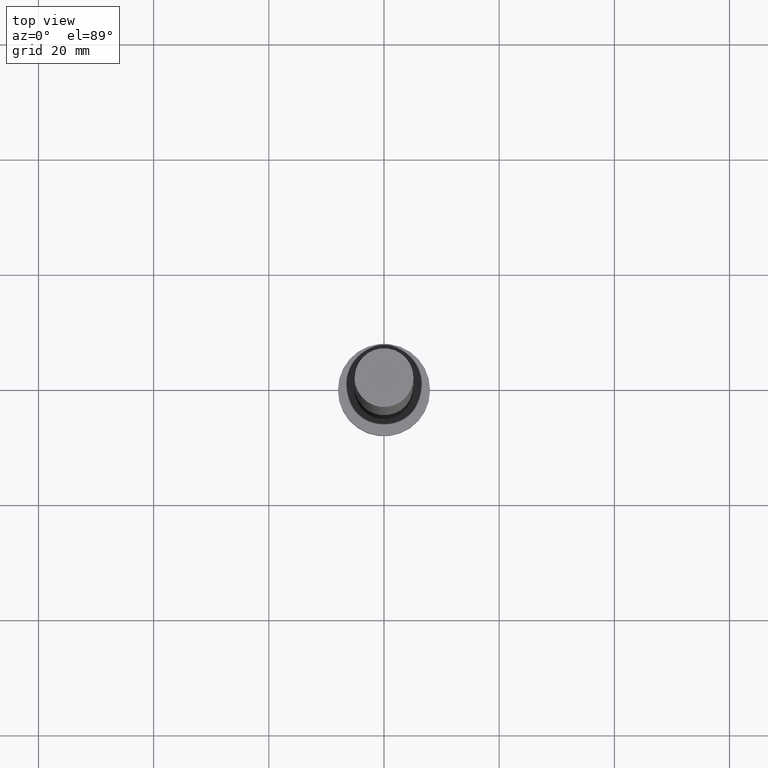
[diagram: clean part render]
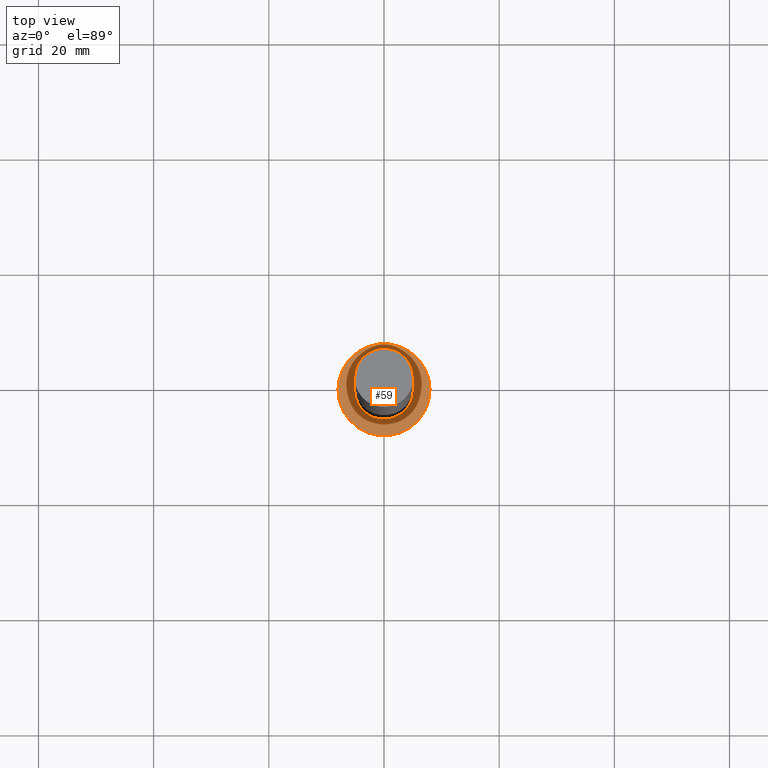
[diagram: same view with one face highlighted and labeled with its STEP entity id]
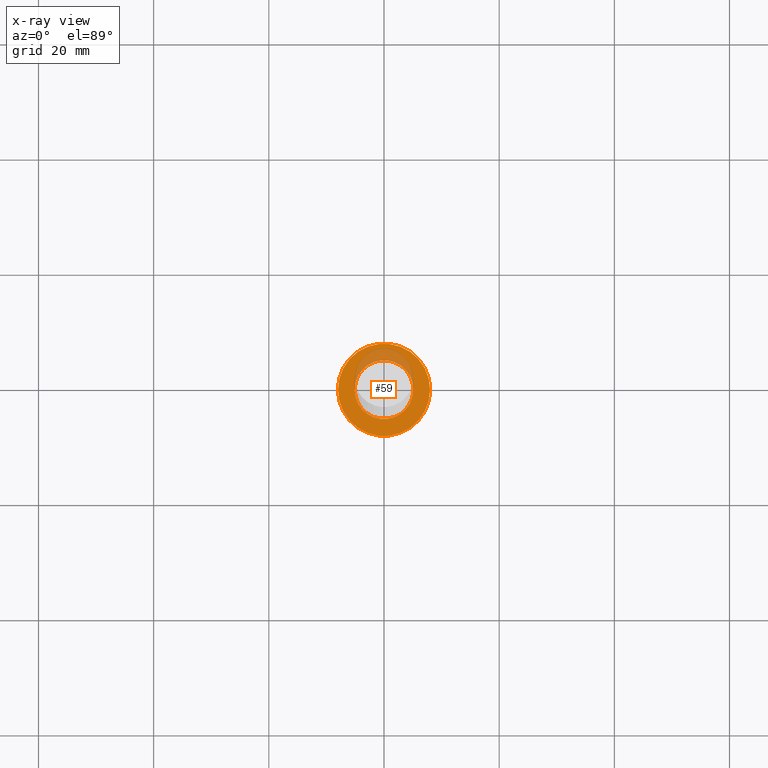
[diagram: x-ray of the same camera — body ghosted, the highlighted face saturated]
A machine part, top view. The second image highlights one B-rep face of the part: STEP entity #59.
The next image is the same camera in x-ray: the body ghosted, the highlighted face saturated — about 18% of this face is hidden behind the body in this view.
In plain terms, the highlighted planar face has unit normal (0, 0, 1).
Its self-contained STEP definition (entity closure, byte-faithful):
#4 = DIRECTION ( 'NONE',  ( 1.000000000000000000, 0.000000000000000000, 0.000000000000000000 ) ) ;
#22 = DIRECTION ( 'NONE',  ( 0.000000000000000000, 0.000000000000000000, 1.000000000000000000 ) ) ;
#31 = CIRCLE ( 'NONE', #61, 5.100000000000001421 ) ;
#39 = DIRECTION ( 'NONE',  ( 0.000000000000000000, 0.000000000000000000, 1.000000000000000000 ) ) ;
#40 = AXIS2_PLACEMENT_3D ( 'NONE', #206, #187, #245 ) ;
#43 = EDGE_CURVE ( 'NONE', #190, #249, #31, .T. ) ;
#55 = CIRCLE ( 'NONE', #40, 8.000000000000000000 ) ;
#59 = ADVANCED_FACE ( 'NONE', ( #100, #157 ), #254, .T. ) ;
#61 = AXIS2_PLACEMENT_3D ( 'NONE', #98, #152, #239 ) ;
#64 = EDGE_CURVE ( 'NONE', #249, #190, #83, .T. ) ;
#73 = ORIENTED_EDGE ( 'NONE', *, *, #43, .F. ) ;
#82 = DIRECTION ( 'NONE',  ( 1.000000000000000000, 0.000000000000000000, -0.000000000000000000 ) ) ;
#83 = CIRCLE ( 'NONE', #199, 5.100000000000001421 ) ;
#91 = AXIS2_PLACEMENT_3D ( 'NONE', #222, #22, #82 ) ;
#98 = CARTESIAN_POINT ( 'NONE',  ( 0.000000000000000000, 0.000000000000000000, 5.000000000000000000 ) ) ;
#100 = FACE_BOUND ( 'NONE', #247, .T. ) ;
#102 = CARTESIAN_POINT ( 'NONE',  ( -5.100000000000001421, 0.000000000000000000, 5.000000000000000000 ) ) ;
#114 = CIRCLE ( 'NONE', #218, 8.000000000000000000 ) ;
#119 = DIRECTION ( 'NONE',  ( 1.000000000000000000, 0.000000000000000000, 0.000000000000000000 ) ) ;
#120 = CARTESIAN_POINT ( 'NONE',  ( 5.100000000000001421, 6.245698675651502811E-16, 5.000000000000000000 ) ) ;
#139 = CARTESIAN_POINT ( 'NONE',  ( 0.000000000000000000, 0.000000000000000000, 5.000000000000000000 ) ) ;
#152 = DIRECTION ( 'NONE',  ( 0.000000000000000000, 0.000000000000000000, 1.000000000000000000 ) ) ;
#157 = FACE_OUTER_BOUND ( 'NONE', #173, .T. ) ;
#168 = VERTEX_POINT ( 'NONE', #223 ) ;
#173 = EDGE_LOOP ( 'NONE', ( #175, #253 ) ) ;
#175 = ORIENTED_EDGE ( 'NONE', *, *, #201, .T. ) ;
#180 = DIRECTION ( 'NONE',  ( 0.000000000000000000, 0.000000000000000000, 1.000000000000000000 ) ) ;
#184 = CARTESIAN_POINT ( 'NONE',  ( -8.000000000000000000, 0.000000000000000000, 5.000000000000000000 ) ) ;
#185 = EDGE_CURVE ( 'NONE', #168, #230, #114, .T. ) ;
#187 = DIRECTION ( 'NONE',  ( 0.000000000000000000, 0.000000000000000000, 1.000000000000000000 ) ) ;
#190 = VERTEX_POINT ( 'NONE', #120 ) ;
#199 = AXIS2_PLACEMENT_3D ( 'NONE', #237, #180, #4 ) ;
#201 = EDGE_CURVE ( 'NONE', #230, #168, #55, .T. ) ;
#206 = CARTESIAN_POINT ( 'NONE',  ( 0.000000000000000000, 0.000000000000000000, 5.000000000000000000 ) ) ;
#217 = ORIENTED_EDGE ( 'NONE', *, *, #64, .F. ) ;
#218 = AXIS2_PLACEMENT_3D ( 'NONE', #139, #39, #119 ) ;
#222 = CARTESIAN_POINT ( 'NONE',  ( 0.000000000000000000, 0.000000000000000000, 5.000000000000000000 ) ) ;
#223 = CARTESIAN_POINT ( 'NONE',  ( 8.000000000000000000, 9.797174393178825657E-16, 5.000000000000000000 ) ) ;
#230 = VERTEX_POINT ( 'NONE', #184 ) ;
#237 = CARTESIAN_POINT ( 'NONE',  ( 0.000000000000000000, 0.000000000000000000, 5.000000000000000000 ) ) ;
#239 = DIRECTION ( 'NONE',  ( 1.000000000000000000, 0.000000000000000000, 0.000000000000000000 ) ) ;
#245 = DIRECTION ( 'NONE',  ( 1.000000000000000000, 0.000000000000000000, 0.000000000000000000 ) ) ;
#247 = EDGE_LOOP ( 'NONE', ( #217, #73 ) ) ;
#249 = VERTEX_POINT ( 'NONE', #102 ) ;
#253 = ORIENTED_EDGE ( 'NONE', *, *, #185, .T. ) ;
#254 = PLANE ( 'NONE',  #91 ) ;